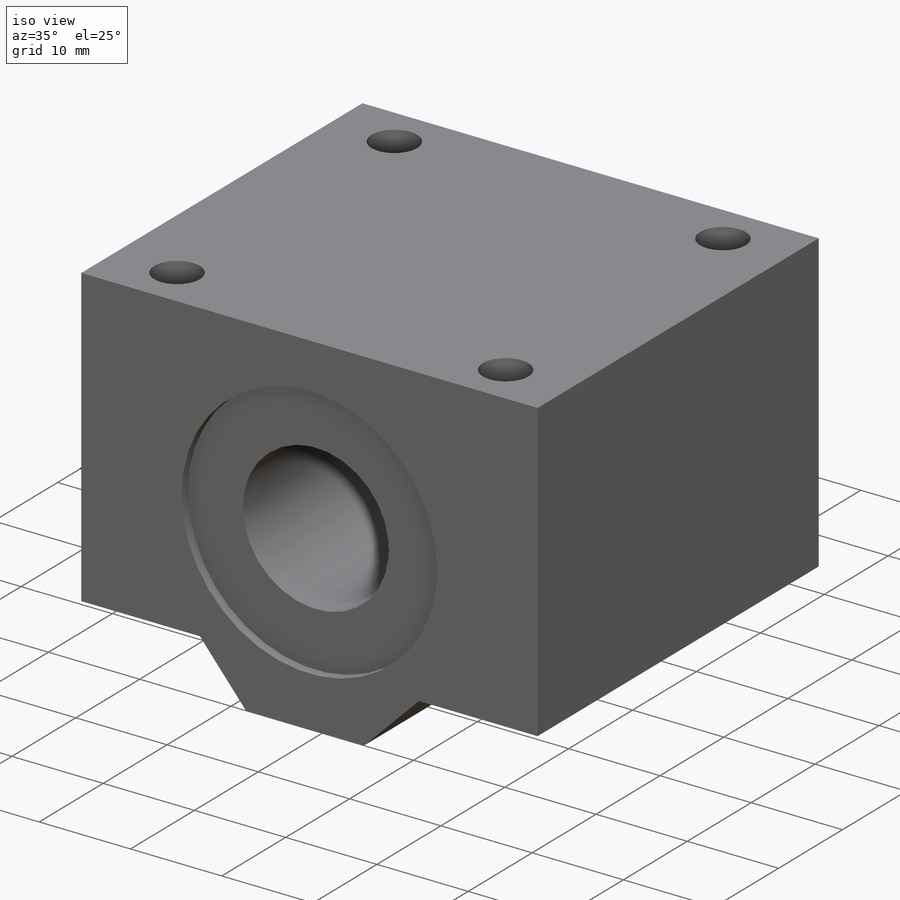
[diagram: iso view]
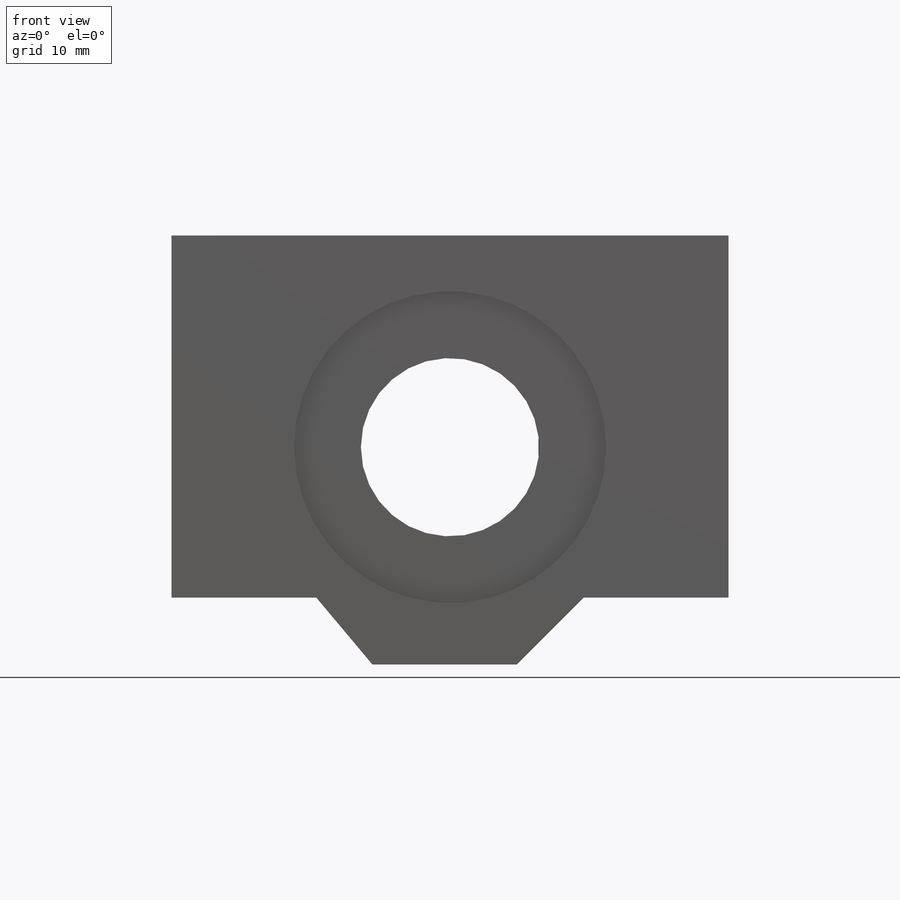
[diagram: front view]
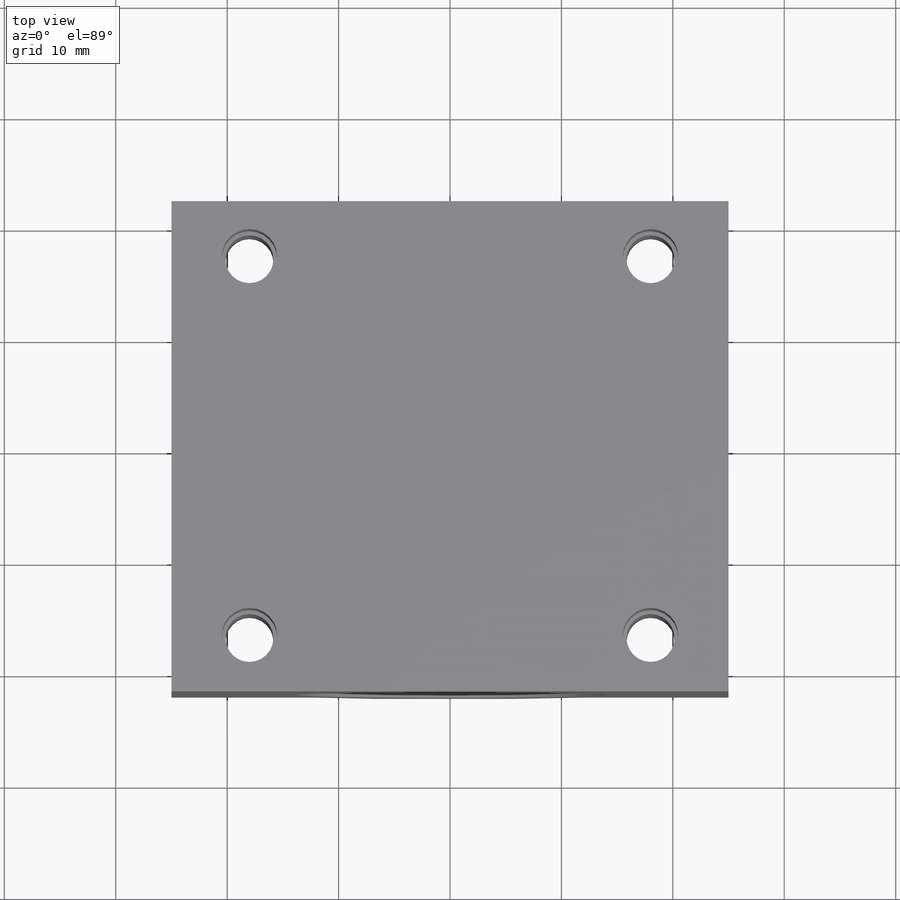
[diagram: top view]
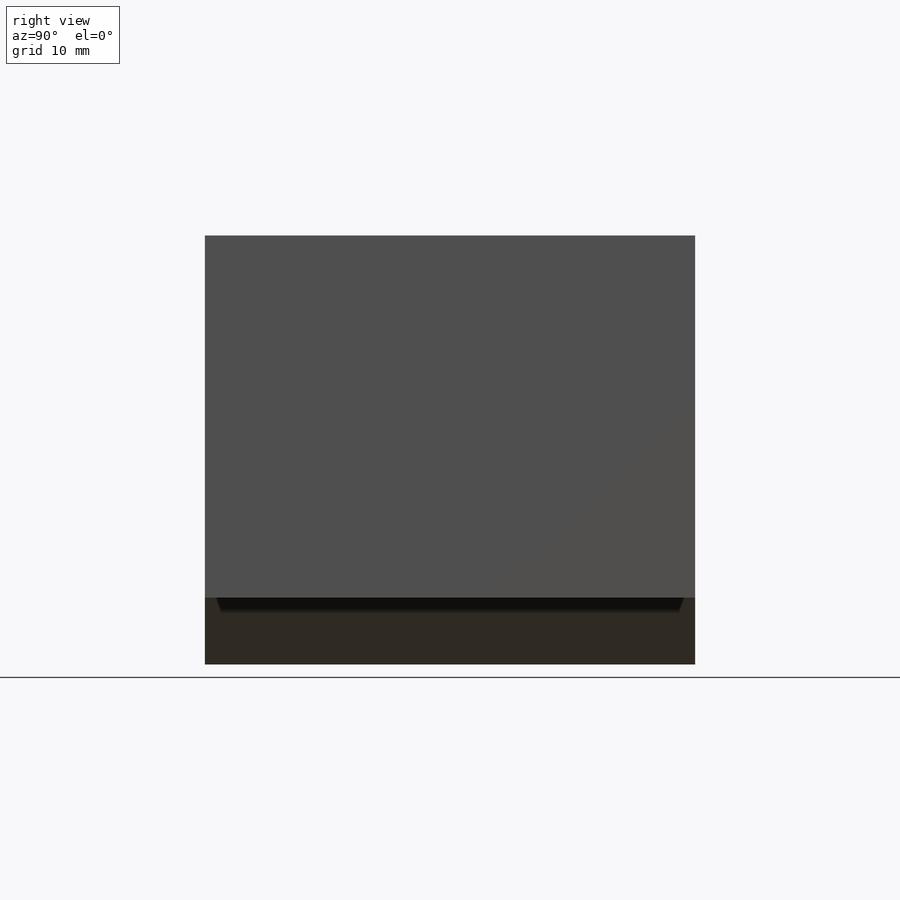
[diagram: right view]
SOLIDWORKS PART (.sldprt)
format: sldprt  version: not decoded by parser v0  size: 252,928 bytes
history: native  units: mm
features: sketch x6, cut_extrude x5, material x1, extrude x1 (+12 scaffold rows collapsed)
feature tree (25):
  scaffold x12  (default folders/planes/origin — collapsed)
  material  "Material <not specified>"
  sketch  "Sketch1"  dims[D3=16.0mm D1=50.0mm D2=38.5mm D4=25.0mm D5=19.0mm]
  extrude  "Boss-Extrude1"  Depth=44mm
  sketch  "Sketch6"  dims[c1.D1=5.0mm c1.D2=5.0mm c2.D2=135.0deg c2.D3=5.0mm c3.D3=135.0deg c3.D4=12.0mm c3.D5=12.0mm c3.D6=13.0mm c3.D7=~4.204144mm c4.D7=135.0deg c4.D8=6.0mm c4.D9=5.0mm c5.D9=130.0deg c5.D10=13.0mm]
  cut_extrude  "Cut-Extrude5"  [1 undecoded]
  sketch  "Sketch2"  dims[D1=4.3mm D2=4.3mm D3=4.3mm D4=4.3mm D5=18.0mm D6=18.0mm D7=18.0mm D8=18.0mm D9=17.0mm D10=17.0mm D11=17.0mm D12=17.0mm]
  cut_extrude  "Cut-Extrude1"  [1 undecoded]
  sketch  "Sketch3"  dims[D1=5.0mm D2=5.0mm D3=5.0mm D4=5.0mm]
  cut_extrude  "Cut-Extrude2"  Depth=12mm
  sketch  "Sketch4"  dims[D1=28.0mm]
  cut_extrude  "Cut-Extrude3"  Depth=1mm
  sketch  "Sketch5"  dims[D1=28.0mm]
  cut_extrude  "Cut-Extrude4"  Depth=1mm
decode coverage: 10 of 12 modeling features carry decoded parameters
note: ~ marks probable driven/reference dimensions
note: 2 parameter values undecoded
note: suppression state not decoded; provenance and decode notes live in map.json
